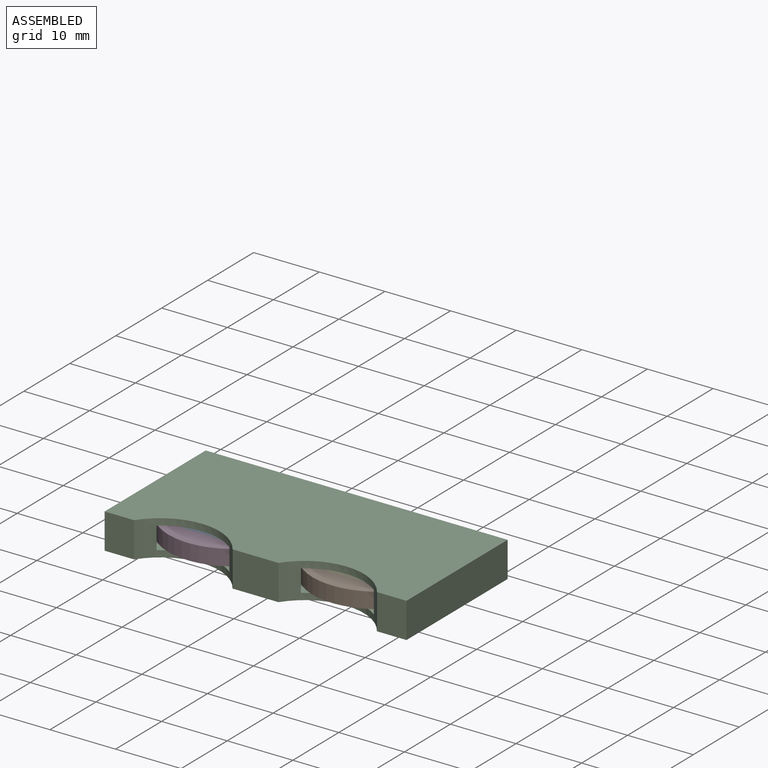
[diagram: assembled view]
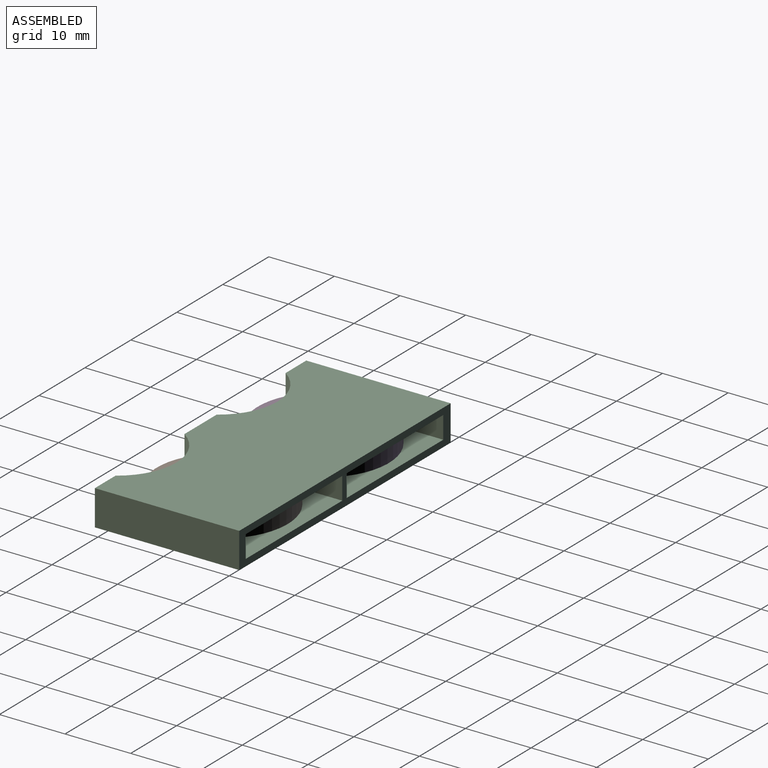
[diagram: assembled view, second angle]
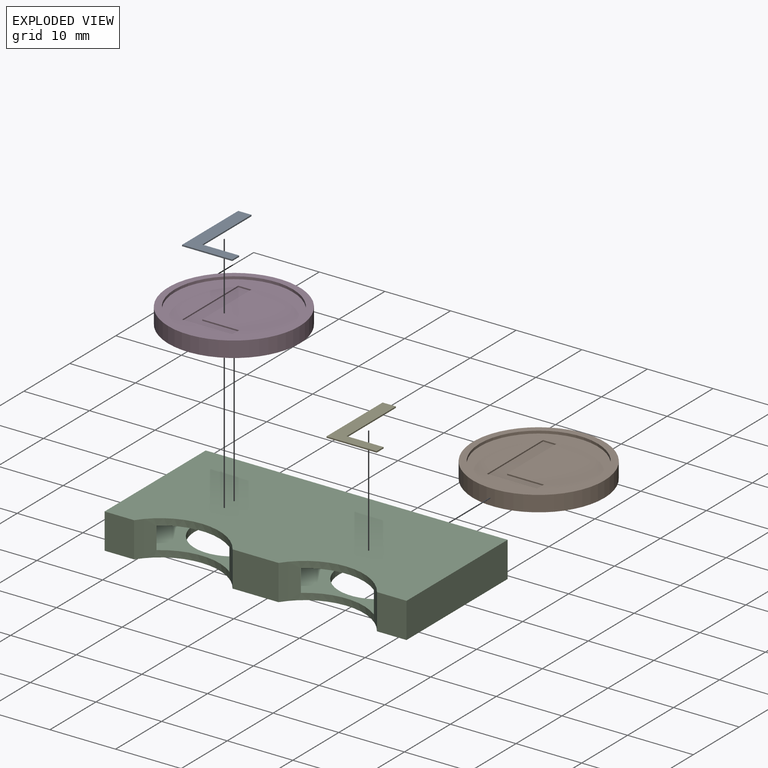
[diagram: exploded view]
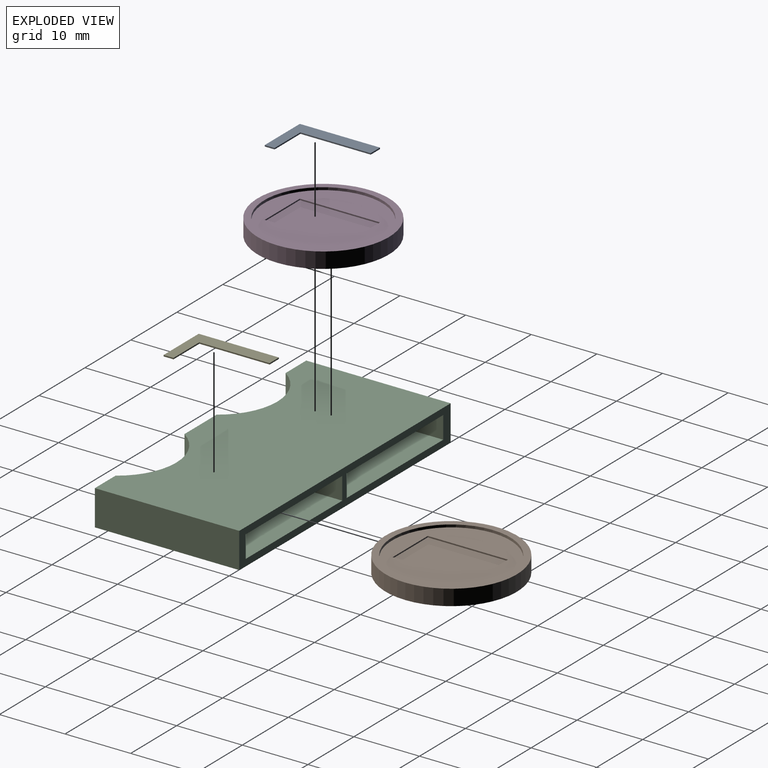
[diagram: exploded view, second angle]
ASSEMBLY  parts=5 mates=4
PART A: 8 faces, bbox 7.6x12.2x0.2 mm
  f0: plane 10.71x0.2mm, normal (1,0,0), area 2.1mm2, adj f1,f5,f6,f7
  f1: plane 2.02x0.2mm, normal (0,1,0), area 0.4mm2, adj f0,f2,f6,f7
  f2: plane 12.22x0.2mm, normal (-1,0,0), area 2.4mm2, adj f1,f3,f6,f7
  f3: plane 7.65x0.2mm, normal (0,-1,0), area 1.5mm2, adj f2,f4,f6,f7
  f4: plane 1.51x0.2mm, normal (1,0,0), area 0.3mm2, adj f3,f5,f6,f7
  f5: plane 5.62x0.2mm, normal (0,1,0), area 1.1mm2, adj f0,f4,f6,f7
  f6: plane 12.22x7.65mm, normal (0,0,1), area 33.2mm2, adj f0,f1,f2,f3,f4,f5
  f7: plane 12.22x7.65mm, normal (0,0,-1), area 33.2mm2, adj f0,f1,f2,f3,f4,f5
PART B: 44 faces, bbox 20x20x2.4 mm
  f0: plane 20x20mm, normal (0,0,-1), area 263.7mm2, adj f11,f12,f13,f14,f15,f16,f17,f18
  f1: plane 18x18mm, normal (0,0,1), area 221.2mm2, adj f2,f3,f4,f5,f6,f7,f9
  f2: plane 2.02x0.2mm, normal (0,-1,0), area 0.4mm2, adj f1,f3,f7,f8
  f3: plane 10.71x0.2mm, normal (-1,0,0), area 2.1mm2, adj f1,f2,f4,f8
  f4: plane 5.62x0.2mm, normal (0,-1,0), area 1.1mm2, adj f1,f3,f5,f8
  f5: plane 1.51x0.2mm, normal (-1,0,0), area 0.3mm2, adj f1,f4,f6,f8
  f6: plane 7.65x0.2mm, normal (0,1,0), area 1.5mm2, adj f1,f5,f7,f8
  f7: plane 12.22x0.2mm, normal (1,0,0), area 2.4mm2, adj f1,f2,f6,f8
  f8: plane 12.22x7.65mm, normal (0,0,1), area 33.2mm2, adj f2,f3,f4,f5,f6,f7
  f9: cylinder r=9mm len=18mm, axis (0,0,-1), area 22.6mm2, adj f1,f10
  f10: plane 20x20mm, normal (0,0,1), area 59.7mm2, adj f9,f11
  f11: cylinder r=10mm len=20mm, axis (0,0,-1), area 150.8mm2, adj f0,f10
  f12: plane 4.7x2.72mm, normal (0.87,-0.5,0), area 2.2mm2, adj f0,f13,f37,f38
  f13: extruded ~1.62x1.34mm, area 0.9mm2, adj f0,f12,f14,f38
  f14: extruded ~2.2x0.6mm, area 0.9mm2, adj f0,f13,f15,f38
  f15: extruded ~1.55x0.4mm, area 0.6mm2, adj f0,f14,f16,f38
  f16: extruded ~1.17x0.96mm, area 0.6mm2, adj f0,f15,f17,f38
  f17: extruded ~1.34x0.73mm, area 0.6mm2, adj f0,f16,f18,f38
  f18: extruded ~1.5x0.4mm, area 0.6mm2, adj f0,f17,f19,f38
  f19: plane 0.83x0.4mm, normal (0,-1,0), area 0.3mm2, adj f0,f18,f20,f38
  f20: plane 1.47x0.4mm, normal (-1,0,0), area 0.6mm2, adj f0,f19,f21,f38
  f21: plane 0.79x0.4mm, normal (0,1,0), area 0.3mm2, adj f0,f20,f22,f38
  f22: extruded ~1.2x0.4mm, area 0.5mm2, adj f0,f21,f23,f38
  f23: extruded ~0.7x0.58mm, area 0.4mm2, adj f0,f22,f24,f38
  f24: extruded ~0.73x0.4mm, area 0.3mm2, adj f0,f23,f25,f38
  f25: extruded ~0.67x0.4mm, area 0.3mm2, adj f0,f24,f26,f38
  f26: extruded ~1.22x0.4mm, area 0.5mm2, adj f0,f25,f27,f38
  f27: extruded ~0.77x0.47mm, area 0.4mm2, adj f0,f26,f28,f38
  f28: extruded ~0.65x0.4mm, area 0.3mm2, adj f0,f27,f29,f38
  f29: extruded ~0.71x0.4mm, area 0.3mm2, adj f0,f28,f30,f38
  f30: plane 1.1x0.4mm, normal (0,-1,0), area 0.4mm2, adj f0,f29,f31,f38
  f31: plane 1.42x0.4mm, normal (-1,0,0), area 0.6mm2, adj f0,f30,f32,f38
  f32: plane 0.57x0.4mm, normal (0,1,0), area 0.2mm2, adj f0,f31,f33,f38
  f33: plane 0.4x0.33mm, normal (0,1,0), area 0.1mm2, adj f0,f32,f34,f38
  f34: extruded ~0.4x0.17mm, area 0.1mm2, adj f0,f33,f35,f38
  f35: extruded ~0.4x0.11mm, area 0mm2, adj f0,f34,f36,f38
  f36: plane 4.32x2.25mm, normal (-0.89,0.46,0), area 1.9mm2, adj f0,f35,f37,f38
  f37: plane 2.06x0.4mm, normal (0,1,0), area 0.8mm2, adj f0,f12,f36,f38
  f38: plane 11.93x5.49mm, normal (0,0,-1), area 27.3mm2, adj f12,f13,f14,f15,f16,f17,f18,f19
  f39: plane 11.93x0.4mm, normal (-1,0,0), area 4.8mm2, adj f0,f40,f42,f43
  f40: plane 1.94x0.4mm, normal (0,1,0), area 0.8mm2, adj f0,f39,f41,f43
  f41: plane 11.93x0.4mm, normal (1,0,0), area 4.8mm2, adj f0,f40,f42,f43
  f42: plane 1.94x0.4mm, normal (0,-1,0), area 0.8mm2, adj f0,f39,f41,f43
  f43: plane 11.93x1.94mm, normal (0,0,-1), area 23.2mm2, adj f39,f40,f41,f42
PART C: 26 faces, bbox 46x22x5.4 mm
  f0: plane 11x3.4mm, normal (-1,0,0), area 37.4mm2, adj f1,f11,f16,f21
  f1: plane 21x19.91mm, normal (0,0,-1), area 377.7mm2, adj f0,f6,f11,f17,f18,f21,f22
  f2: plane 46x22mm, normal (0,0,1), area 927.6mm2, adj f3,f4,f5,f6,f7,f9,f10,f11
  f3: plane 5.4x4.5mm, normal (0,-1,0), area 24.3mm2, adj f2,f4,f8,f10
  f4: cylinder r=9.03mm len=15mm, axis (0,0,-1), area 54.9mm2, adj f2,f3,f5,f8,f13,f15,f20,f23
  f5: plane 7x5.4mm, normal (0,-1,0), area 37.8mm2, adj f2,f4,f6,f8
  f6: cylinder r=9.03mm len=15mm, axis (0,0,-1), area 54.9mm2, adj f1,f2,f5,f7,f8,f16,f18,f22
  f7: plane 5.4x4.5mm, normal (0,-1,0), area 24.3mm2, adj f2,f6,f8,f9
  f8: plane 46x22mm, normal (0,0,-1), area 701.4mm2, adj f3,f4,f5,f6,f7,f9,f10,f11
  f9: plane 22x5.4mm, normal (1,0,0), area 118.8mm2, adj f2,f7,f8,f11
  f10: plane 22x5.4mm, normal (-1,0,0), area 118.8mm2, adj f2,f3,f8,f11
  f11: plane 46x5.4mm, normal (0,1,0), area 105.6mm2, adj f0,f1,f2,f8,f9,f10,f12,f13
  f12: plane 11x3.4mm, normal (-1,0,0), area 37.4mm2, adj f11,f13,f15,f19
  f13: plane 21x19.91mm, normal (0,0,1), area 264.5mm2, adj f4,f11,f12,f14,f19,f20,f23,f25
  f14: plane 12.55x3.4mm, normal (1,0,0), area 42.7mm2, adj f11,f13,f15,f23
  f15: plane 21x19.91mm, normal (0,0,-1), area 377.6mm2, adj f4,f11,f12,f14,f19,f20,f23
  f16: plane 21x19.91mm, normal (0,0,1), area 264.6mm2, adj f0,f6,f11,f17,f18,f21,f22,f24
  f17: plane 12.35x3.4mm, normal (1,0,0), area 42mm2, adj f1,f11,f16,f18
  f18: cylinder r=10.5mm len=7.56mm, axis (0,0,-1), area 31.6mm2, adj f1,f6,f16,f17
  f19: plane 3.4x0.12mm, normal (0,1,0), area 0.4mm2, adj f12,f13,f15,f20
  f20: cylinder r=10.5mm len=8.91mm, axis (0,0,-1), area 36.2mm2, adj f4,f13,f15,f19
  f21: plane 3.4x0.09mm, normal (0,1,0), area 0.3mm2, adj f0,f1,f16,f22
  f22: cylinder r=10.5mm len=8.91mm, axis (0,0,-1), area 36.2mm2, adj f1,f6,f16,f21
  f23: cylinder r=10.5mm len=7.36mm, axis (0,0,-1), area 30.9mm2, adj f4,f13,f14,f15
  f24: cylinder r=6mm len=12mm, axis (0,0,1), area 37.7mm2, adj f8,f16
  f25: cylinder r=6mm len=12mm, axis (0,0,1), area 37.7mm2, adj f8,f13
PART D: 40 faces, bbox 20x20x2.4 mm
  f0: plane 20x20mm, normal (0,0,-1), area 270.5mm2, adj f11,f12,f13,f14,f15,f16,f17,f18
  f1: plane 18x18mm, normal (0,0,1), area 221.2mm2, adj f2,f3,f4,f5,f6,f7,f9
  f2: plane 2.02x0.2mm, normal (0,-1,0), area 0.4mm2, adj f1,f3,f7,f8
  f3: plane 10.71x0.2mm, normal (-1,0,0), area 2.1mm2, adj f1,f2,f4,f8
  f4: plane 5.62x0.2mm, normal (0,-1,0), area 1.1mm2, adj f1,f3,f5,f8
  f5: plane 1.51x0.2mm, normal (-1,0,0), area 0.3mm2, adj f1,f4,f6,f8
  f6: plane 7.65x0.2mm, normal (0,1,0), area 1.5mm2, adj f1,f5,f7,f8
  f7: plane 12.22x0.2mm, normal (1,0,0), area 2.4mm2, adj f1,f2,f6,f8
  f8: plane 12.22x7.65mm, normal (0,0,1), area 33.2mm2, adj f2,f3,f4,f5,f6,f7
  f9: cylinder r=9mm len=18mm, axis (0,0,-1), area 22.6mm2, adj f1,f10
  f10: plane 20x20mm, normal (0,0,1), area 59.7mm2, adj f9,f11
  f11: cylinder r=10mm len=20mm, axis (0,0,-1), area 150.8mm2, adj f0,f10
  f12: plane 0.84x0.4mm, normal (0,-1,0), area 0.3mm2, adj f0,f13,f33,f34
  f13: plane 1.5x0.4mm, normal (-1,0,0), area 0.6mm2, adj f0,f12,f14,f34
  f14: plane 0.81x0.4mm, normal (0,1,0), area 0.3mm2, adj f0,f13,f15,f34
  f15: extruded ~1.22x0.4mm, area 0.5mm2, adj f0,f14,f16,f34
  f16: extruded ~0.72x0.59mm, area 0.4mm2, adj f0,f15,f17,f34
  f17: extruded ~0.74x0.4mm, area 0.3mm2, adj f0,f16,f18,f34
  f18: extruded ~0.69x0.4mm, area 0.3mm2, adj f0,f17,f19,f34
  f19: extruded ~1.25x0.4mm, area 0.5mm2, adj f0,f18,f20,f34
  f20: extruded ~0.79x0.48mm, area 0.4mm2, adj f0,f19,f21,f34
  f21: extruded ~0.65x0.4mm, area 0.3mm2, adj f0,f20,f22,f34
  f22: extruded ~0.72x0.4mm, area 0.3mm2, adj f0,f21,f23,f34
  f23: plane 1.14x0.4mm, normal (0,-1,0), area 0.5mm2, adj f0,f22,f24,f34
  f24: plane 1.45x0.4mm, normal (-1,0,0), area 0.6mm2, adj f0,f23,f25,f34
  f25: plane 0.79x0.4mm, normal (0,1,0), area 0.3mm2, adj f0,f24,f26,f34
  f26: extruded ~1.75x0.4mm, area 0.7mm2, adj f0,f25,f27,f34
  f27: extruded ~1.35x0.79mm, area 0.6mm2, adj f0,f26,f28,f34
  f28: extruded ~1.26x0.87mm, area 0.6mm2, adj f0,f27,f29,f34
  f29: extruded ~1.68x0.4mm, area 0.7mm2, adj f0,f28,f30,f34
  f30: extruded ~1.58x0.4mm, area 0.7mm2, adj f0,f29,f31,f34
  f31: extruded ~1.2x0.97mm, area 0.6mm2, adj f0,f30,f32,f34
  f32: extruded ~1.36x0.74mm, area 0.6mm2, adj f0,f31,f33,f34
  f33: extruded ~1.54x0.4mm, area 0.6mm2, adj f0,f12,f32,f34
  f34: plane 7.78x5.09mm, normal (0,0,-1), area 19.5mm2, adj f12,f13,f14,f15,f16,f17,f18,f19
  f35: plane 12.17x0.4mm, normal (-1,0,0), area 4.9mm2, adj f0,f36,f38,f39
  f36: plane 1.98x0.4mm, normal (0,1,0), area 0.8mm2, adj f0,f35,f37,f39
  f37: plane 12.17x0.4mm, normal (1,0,0), area 4.9mm2, adj f0,f36,f38,f39
  f38: plane 1.98x0.4mm, normal (0,-1,0), area 0.8mm2, adj f0,f35,f37,f39
  f39: plane 12.17x1.98mm, normal (0,0,-1), area 24.1mm2, adj f35,f36,f37,f38
PART E: same geometry as A
PLACE A t=(-34.84,16.95,-4.98)mm
PLACE B t=(-12.84,16.95,-4.98)mm
PLACE C t=(-23.84,16.95,-4.98)mm
PLACE D t=(-34.84,16.95,-4.98)mm
PLACE E t=(-12.84,16.95,-4.98)mm
MATE fastened B.f11 <-> C.f22  axis (0,0,-1) through (-12.84,16.95,-3.78)mm
MATE fastened A.f7 <-> D.f8  axis (0,0,-1) through (-38.46,10.84,-3.18)mm
MATE fastened D.f11 <-> C.f20  axis (0,0,-1) through (-34.84,16.95,-3.78)mm
MATE fastened E.f7 <-> B.f8  axis (0,0,-1) through (-16.46,10.84,-3.18)mm
